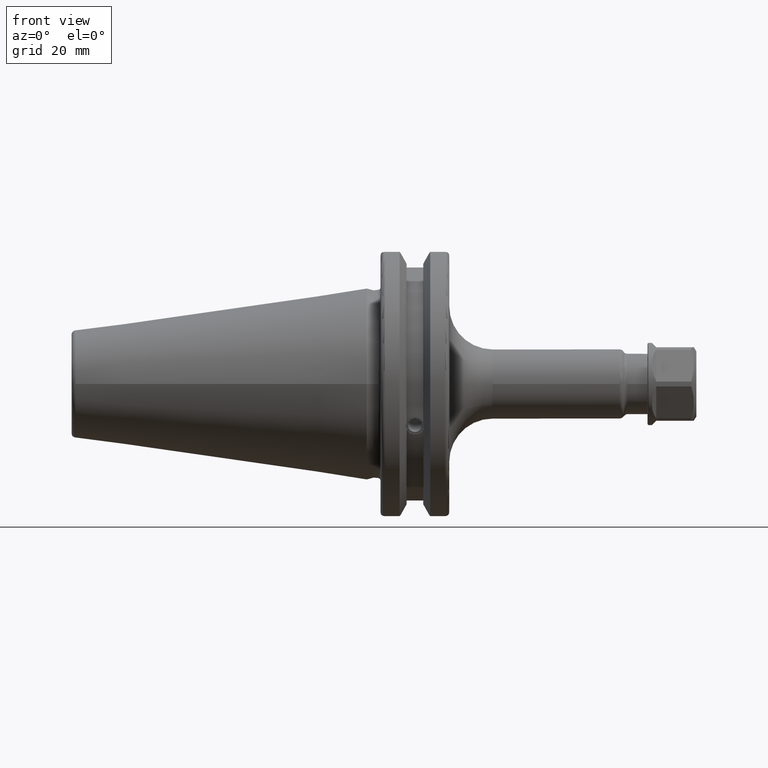
[diagram: clean part render]
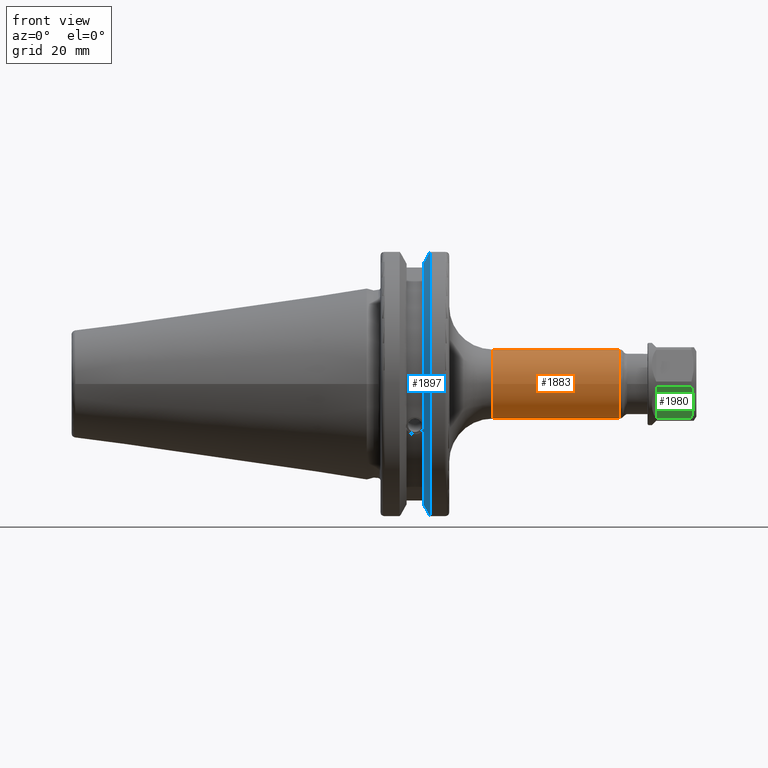
[diagram: same view with three faces highlighted in distinct colors, each labeled with its STEP entity id]
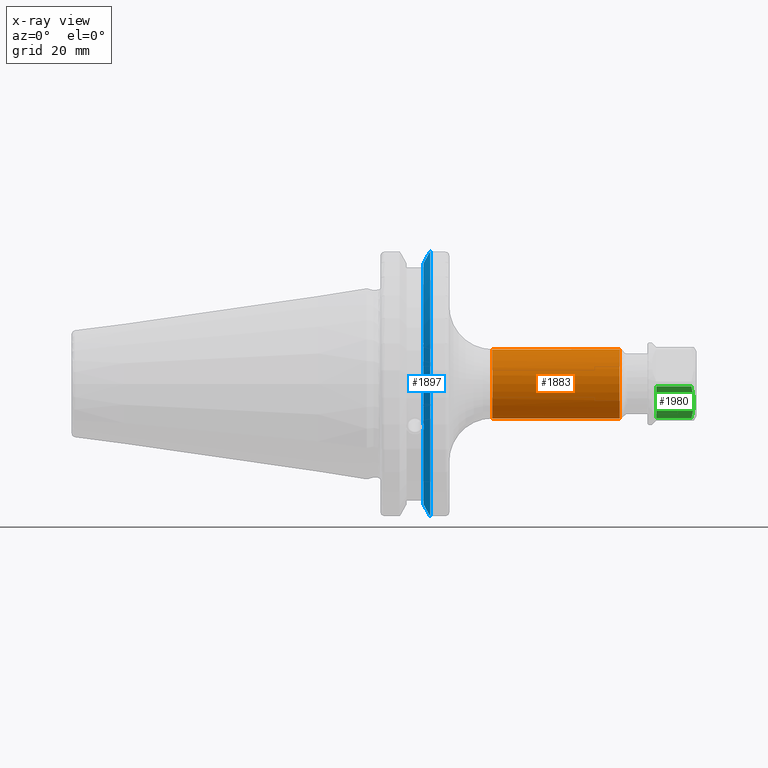
[diagram: x-ray of the same camera — body ghosted, the three highlighted faces saturated]
A machine part, front view with three faces highlighted in distinct colors.
The next image is the same camera in x-ray (body ghosted, the three faces saturated) — at least one of them is partly hidden behind the body in this view.
Their STEP definitions:

[orange] entity #1883 — the highlighted cylindrical surface (bore or boss wall) has radius 8 mm, axis along (1, 0, 0).
#125=CYLINDRICAL_SURFACE('',#2075,8.00000000000001);
#233=FACE_OUTER_BOUND('',#345,.T.);
#345=EDGE_LOOP('',(#1327,#1328,#1329,#1330,#1331,#1332));
#465=LINE('',#3069,#582);
#582=VECTOR('',#2343,8.00000000000001);
#708=CIRCLE('',#2073,8.00000000000001);
#709=CIRCLE('',#2074,8.00000000000001);
#710=CIRCLE('',#2076,8.00000000000001);
#711=CIRCLE('',#2077,8.00000000000001);
#807=VERTEX_POINT('',#3062);
#808=VERTEX_POINT('',#3064);
#809=VERTEX_POINT('',#3068);
#810=VERTEX_POINT('',#3070);
#1010=EDGE_CURVE('',#807,#808,#708,.T.);
#1011=EDGE_CURVE('',#808,#807,#709,.T.);
#1012=EDGE_CURVE('',#808,#809,#465,.T.);
#1013=EDGE_CURVE('',#810,#809,#710,.T.);
#1014=EDGE_CURVE('',#809,#810,#711,.T.);
#1327=ORIENTED_EDGE('',*,*,#1011,.F.);
#1328=ORIENTED_EDGE('',*,*,#1012,.T.);
#1329=ORIENTED_EDGE('',*,*,#1013,.F.);
#1330=ORIENTED_EDGE('',*,*,#1014,.F.);
#1331=ORIENTED_EDGE('',*,*,#1012,.F.);
#1332=ORIENTED_EDGE('',*,*,#1010,.F.);
#1883=ADVANCED_FACE('',(#233),#125,.T.);
#2073=AXIS2_PLACEMENT_3D('',#3065,#2337,#2338);
#2074=AXIS2_PLACEMENT_3D('',#3066,#2339,#2340);
#2075=AXIS2_PLACEMENT_3D('',#3067,#2341,#2342);
#2076=AXIS2_PLACEMENT_3D('',#3071,#2344,#2345);
#2077=AXIS2_PLACEMENT_3D('',#3072,#2346,#2347);
#2337=DIRECTION('center_axis',(1.,0.,0.));
#2338=DIRECTION('ref_axis',(0.,-1.,1.83697019872103E-16));
#2339=DIRECTION('center_axis',(1.,0.,0.));
#2340=DIRECTION('ref_axis',(0.,-1.,1.83697019872103E-16));
#2341=DIRECTION('center_axis',(1.,0.,0.));
#2342=DIRECTION('ref_axis',(0.,1.,0.));
#2343=DIRECTION('',(-1.,0.,0.));
#2344=DIRECTION('center_axis',(-1.,0.,0.));
#2345=DIRECTION('ref_axis',(0.,-1.,-1.22464679914735E-16));
#2346=DIRECTION('center_axis',(-1.,0.,0.));
#2347=DIRECTION('ref_axis',(0.,-1.,-1.22464679914735E-16));
#3062=CARTESIAN_POINT('',(58.4452994616207,-9.79717439317883E-16,8.00000000000001));
#3064=CARTESIAN_POINT('',(58.4452994616207,-8.00000000000001,-9.79717439317883E-16));
#3065=CARTESIAN_POINT('Origin',(58.4452994616207,0.,0.));
#3066=CARTESIAN_POINT('Origin',(58.4452994616207,0.,0.));
#3067=CARTESIAN_POINT('Origin',(39.0363248654052,0.,0.));
#3068=CARTESIAN_POINT('',(29.05,-8.00000000000001,-9.79717439317883E-16));
#3069=CARTESIAN_POINT('',(39.0363248654052,-8.00000000000001,-9.79717439317883E-16));
#3070=CARTESIAN_POINT('',(29.05,-9.79717439317883E-16,-8.00000000000001));
#3071=CARTESIAN_POINT('Origin',(29.05,0.,0.));
#3072=CARTESIAN_POINT('Origin',(29.05,0.,0.));

[blue] entity #1897 — the highlighted conical surface has half-angle 60 deg.
#27=(
BOUNDED_CURVE()
B_SPLINE_CURVE(2,(#3226,#3227,#3228),.UNSPECIFIED.,.F.,.F.)
B_SPLINE_CURVE_WITH_KNOTS((3,3),(0.,0.276549142796025),.UNSPECIFIED.)
CURVE()
GEOMETRIC_REPRESENTATION_ITEM()
RATIONAL_B_SPLINE_CURVE((1.,1.00095203903598,1.00031614444907))
REPRESENTATION_ITEM('')
);
#28=(
BOUNDED_CURVE()
B_SPLINE_CURVE(2,(#3230,#3231,#3232),.UNSPECIFIED.,.F.,.F.)
B_SPLINE_CURVE_WITH_KNOTS((3,3),(0.,0.0639048713675602),.UNSPECIFIED.)
CURVE()
GEOMETRIC_REPRESENTATION_ITEM()
RATIONAL_B_SPLINE_CURVE((1.,1.00028444218291,1.00047644010587))
REPRESENTATION_ITEM('')
);
#29=(
BOUNDED_CURVE()
B_SPLINE_CURVE(2,(#3236,#3237,#3238),.UNSPECIFIED.,.F.,.F.)
B_SPLINE_CURVE_WITH_KNOTS((3,3),(0.329353533631195,0.393258405001024),
 .UNSPECIFIED.)
CURVE()
GEOMETRIC_REPRESENTATION_ITEM()
RATIONAL_B_SPLINE_CURVE((1.0004764401059,1.00028444218293,1.))
REPRESENTATION_ITEM('')
);
#30=(
BOUNDED_CURVE()
B_SPLINE_CURVE(2,(#3240,#3241,#3242),.UNSPECIFIED.,.F.,.F.)
B_SPLINE_CURVE_WITH_KNOTS((3,3),(0.0550586467390504,0.33160778953585),
 .UNSPECIFIED.)
CURVE()
GEOMETRIC_REPRESENTATION_ITEM()
RATIONAL_B_SPLINE_CURVE((1.00031614445126,1.00095203904259,1.))
REPRESENTATION_ITEM('')
);
#96=B_SPLINE_CURVE_WITH_KNOTS('',3,(#3133,#3134,#3135,#3136,#3137,#3138,
#3139,#3140),.UNSPECIFIED.,.F.,.F.,(4,2,2,4),(0.451995700189024,0.464547828547661,
0.504528771685166,0.544509714822671),.UNSPECIFIED.);
#100=B_SPLINE_CURVE_WITH_KNOTS('',3,(#3195,#3196,#3197,#3198,#3199,#3200,
#3201,#3202),.UNSPECIFIED.,.F.,.F.,(4,2,2,4),(0.544509714822671,0.584490657960176,
0.624471601097681,0.637023729456319),.UNSPECIFIED.);
#247=FACE_OUTER_BOUND('',#363,.T.);
#363=EDGE_LOOP('',(#1409,#1410,#1411,#1412,#1413,#1414,#1415,#1416,#1417));
#722=CIRCLE('',#2111,28.9593772964944);
#723=CIRCLE('',#2112,31.75);
#724=CIRCLE('',#2113,28.9593772964944);
#833=VERTEX_POINT('',#3130);
#834=VERTEX_POINT('',#3132);
#841=VERTEX_POINT('',#3193);
#847=VERTEX_POINT('',#3223);
#848=VERTEX_POINT('',#3225);
#849=VERTEX_POINT('',#3229);
#850=VERTEX_POINT('',#3233);
#851=VERTEX_POINT('',#3235);
#852=VERTEX_POINT('',#3239);
#1044=EDGE_CURVE('',#834,#833,#96,.T.);
#1052=EDGE_CURVE('',#833,#841,#100,.T.);
#1061=EDGE_CURVE('',#841,#847,#722,.T.);
#1062=EDGE_CURVE('',#847,#848,#27,.T.);
#1063=EDGE_CURVE('',#849,#848,#28,.T.);
#1064=EDGE_CURVE('',#850,#849,#723,.T.);
#1065=EDGE_CURVE('',#851,#850,#29,.T.);
#1066=EDGE_CURVE('',#851,#852,#30,.T.);
#1067=EDGE_CURVE('',#852,#834,#724,.T.);
#1409=ORIENTED_EDGE('',*,*,#1044,.T.);
#1410=ORIENTED_EDGE('',*,*,#1052,.T.);
#1411=ORIENTED_EDGE('',*,*,#1061,.T.);
#1412=ORIENTED_EDGE('',*,*,#1062,.T.);
#1413=ORIENTED_EDGE('',*,*,#1063,.F.);
#1414=ORIENTED_EDGE('',*,*,#1064,.F.);
#1415=ORIENTED_EDGE('',*,*,#1065,.F.);
#1416=ORIENTED_EDGE('',*,*,#1066,.T.);
#1417=ORIENTED_EDGE('',*,*,#1067,.T.);
#1862=CONICAL_SURFACE('',#2110,30.3546886482472,1.0471975511966);
#1897=ADVANCED_FACE('',(#247),#1862,.T.);
#2110=AXIS2_PLACEMENT_3D('',#3222,#2434,#2435);
#2111=AXIS2_PLACEMENT_3D('',#3224,#2436,#2437);
#2112=AXIS2_PLACEMENT_3D('',#3234,#2438,#2439);
#2113=AXIS2_PLACEMENT_3D('',#3243,#2440,#2441);
#2434=DIRECTION('center_axis',(1.,0.,0.));
#2435=DIRECTION('ref_axis',(0.,-1.,-1.22464679914735E-16));
#2436=DIRECTION('center_axis',(1.,0.,0.));
#2437=DIRECTION('ref_axis',(0.,0.,-1.));
#2438=DIRECTION('center_axis',(1.,0.,0.));
#2439=DIRECTION('ref_axis',(0.,0.,-1.));
#2440=DIRECTION('center_axis',(1.,0.,0.));
#2441=DIRECTION('ref_axis',(0.,0.,-1.));
#3130=CARTESIAN_POINT('',(13.227,-27.51401829017,-10.0142836826777));
#3132=CARTESIAN_POINT('',(13.042,-27.4956274489925,-9.09043478536246));
#3133=CARTESIAN_POINT('Ctrl Pts',(13.042,-27.4956274489925,-9.09043478536246));
#3134=CARTESIAN_POINT('Ctrl Pts',(13.0561204071996,-27.5087667900418,-9.12860597076218));
#3135=CARTESIAN_POINT('Ctrl Pts',(13.0695929817857,-27.5206055003512,-9.16696618806878));
#3136=CARTESIAN_POINT('Ctrl Pts',(13.122981441159,-27.5642934663232,-9.32791534028656));
#3137=CARTESIAN_POINT('Ctrl Pts',(13.1611197084175,-27.5867382255984,-9.46717946402648));
#3138=CARTESIAN_POINT('Ctrl Pts',(13.2133106446058,-27.5847569104122,-9.74771639360671));
#3139=CARTESIAN_POINT('Ctrl Pts',(13.227,-27.559599249844,-9.8890510252165));
#3140=CARTESIAN_POINT('Ctrl Pts',(13.227,-27.51401829017,-10.0142836826777));
#3193=CARTESIAN_POINT('',(13.042,-26.9060914640648,-10.7101715919071));
#3195=CARTESIAN_POINT('Ctrl Pts',(13.227,-27.51401829017,-10.0142836826777));
#3196=CARTESIAN_POINT('Ctrl Pts',(13.227,-27.4684373304961,-10.139516340139));
#3197=CARTESIAN_POINT('Ctrl Pts',(13.2133106446058,-27.3968610665578,-10.2639559818059));
#3198=CARTESIAN_POINT('Ctrl Pts',(13.1611197084175,-27.2180531796526,-10.4801333026531));
#3199=CARTESIAN_POINT('Ctrl Pts',(13.122981441159,-27.1113422433189,-10.5723885976054));
#3200=CARTESIAN_POINT('Ctrl Pts',(13.0695929817857,-26.9744191989197,-10.6676007180673));
#3201=CARTESIAN_POINT('Ctrl Pts',(13.0561204071996,-26.9406927482839,-10.6893765730703));
#3202=CARTESIAN_POINT('Ctrl Pts',(13.042,-26.9060914640648,-10.7101715919071));
#3222=CARTESIAN_POINT('Origin',(13.8475833845378,0.,0.));
#3223=CARTESIAN_POINT('',(13.042,-8.19,-27.7771386827498));
#3224=CARTESIAN_POINT('Origin',(13.042,0.,0.));
#3225=CARTESIAN_POINT('',(14.3744146964874,-8.19,-30.1755016258903));
#3226=CARTESIAN_POINT('Ctrl Pts',(13.042,-8.19,-27.7771386827498));
#3227=CARTESIAN_POINT('Ctrl Pts',(13.6806364384794,-8.19,-28.9303689539765));
#3228=CARTESIAN_POINT('Ctrl Pts',(14.3744146964874,-8.19,-30.1755016258903));
#3229=CARTESIAN_POINT('',(14.6531667690756,-8.67204822802685,-30.5427254764662));
#3230=CARTESIAN_POINT('Ctrl Pts',(14.6531667690756,-8.67204822802685,-30.5427254764662));
#3231=CARTESIAN_POINT('Ctrl Pts',(14.5121085187837,-8.42917748262641,-30.3577067892629));
#3232=CARTESIAN_POINT('Ctrl Pts',(14.3744146964874,-8.19,-30.1755016258903));
#3233=CARTESIAN_POINT('',(14.6531667690756,-8.67204822802685,30.5427254764662));
#3234=CARTESIAN_POINT('Origin',(14.6531667690756,0.,0.));
#3235=CARTESIAN_POINT('',(14.3744146964874,-8.19,30.1755016258903));
#3236=CARTESIAN_POINT('Ctrl Pts',(14.3744146964874,-8.19,30.1755016258903));
#3237=CARTESIAN_POINT('Ctrl Pts',(14.5121085187884,-8.42917748263464,30.3577067892692));
#3238=CARTESIAN_POINT('Ctrl Pts',(14.6531667690756,-8.67204822802686,30.5427254764662));
#3239=CARTESIAN_POINT('',(13.042,-8.19,27.7771386827498));
#3240=CARTESIAN_POINT('Ctrl Pts',(14.3744146964874,-8.19,30.1755016258903));
#3241=CARTESIAN_POINT('Ctrl Pts',(13.6806364384741,-8.19,28.930368953967));
#3242=CARTESIAN_POINT('Ctrl Pts',(13.042,-8.19,27.7771386827498));
#3243=CARTESIAN_POINT('Origin',(13.042,0.,0.));

[green] entity #1980 — the highlighted planar face has unit normal (0, 0.866, 0.5).
#45=(
BOUNDED_CURVE()
B_SPLINE_CURVE(2,(#3762,#3763,#3764),.UNSPECIFIED.,.F.,.F.)
B_SPLINE_CURVE_WITH_KNOTS((3,3),(1.71636261954135,3.43883579587366),
 .UNSPECIFIED.)
CURVE()
GEOMETRIC_REPRESENTATION_ITEM()
RATIONAL_B_SPLINE_CURVE((1.88000685099785,2.10118412758618,1.88000685099786))
REPRESENTATION_ITEM('')
);
#221=PLANE('',#2273);
#330=FACE_OUTER_BOUND('',#457,.T.);
#457=EDGE_LOOP('',(#1852,#1853,#1854,#1855));
#560=LINE('',#3799,#677);
#561=LINE('',#3802,#678);
#575=LINE('',#3845,#692);
#677=VECTOR('',#2796,8.145299461621);
#678=VECTOR('',#2799,8.145299461621);
#692=VECTOR('',#2849,8.48528137423872);
#955=VERTEX_POINT('',#3759);
#956=VERTEX_POINT('',#3761);
#966=VERTEX_POINT('',#3798);
#967=VERTEX_POINT('',#3800);
#1233=EDGE_CURVE('',#956,#955,#45,.T.);
#1247=EDGE_CURVE('',#966,#956,#560,.T.);
#1249=EDGE_CURVE('',#967,#955,#561,.T.);
#1271=EDGE_CURVE('',#966,#967,#575,.T.);
#1852=ORIENTED_EDGE('',*,*,#1271,.F.);
#1853=ORIENTED_EDGE('',*,*,#1247,.T.);
#1854=ORIENTED_EDGE('',*,*,#1233,.T.);
#1855=ORIENTED_EDGE('',*,*,#1249,.F.);
#1980=ADVANCED_FACE('',(#330),#221,.F.);
#2273=AXIS2_PLACEMENT_3D('',#3844,#2847,#2848);
#2796=DIRECTION('',(1.,0.,0.));
#2799=DIRECTION('',(1.,0.,0.));
#2847=DIRECTION('center_axis',(0.,0.866025403784429,0.500000000000017));
#2848=DIRECTION('ref_axis',(0.,-0.500000000000017,0.866025403784429));
#2849=DIRECTION('',(0.,-0.500000000000017,0.866025403784429));
#3759=CARTESIAN_POINT('',(4.495299461621,-9.482536275727,-0.5757653858252));
#3761=CARTESIAN_POINT('',(4.495299461621,-5.239895588608,-7.924234614175));
#3762=CARTESIAN_POINT('Ctrl Pts',(4.49529946162074,-5.23989558860513,-7.9242346141762));
#3763=CARTESIAN_POINT('Ctrl Pts',(5.58922628745507,-7.36121593216611,-4.24999999999928));
#3764=CARTESIAN_POINT('Ctrl Pts',(4.49529946162076,-9.48253627572708,-0.575765385822384));
#3798=CARTESIAN_POINT('',(-3.65,-5.239895588608,-7.924234614175));
#3799=CARTESIAN_POINT('',(-3.65,-5.239895588608,-7.924234614175));
#3800=CARTESIAN_POINT('',(-3.65,-9.482536275727,-0.5757653858252));
#3802=CARTESIAN_POINT('',(-3.65,-9.482536275727,-0.5757653858252));
#3844=CARTESIAN_POINT('Origin',(5.65,-2.361215932168,-12.91025403784));
#3845=CARTESIAN_POINT('',(-3.65,-5.239895588608,-7.924234614175));